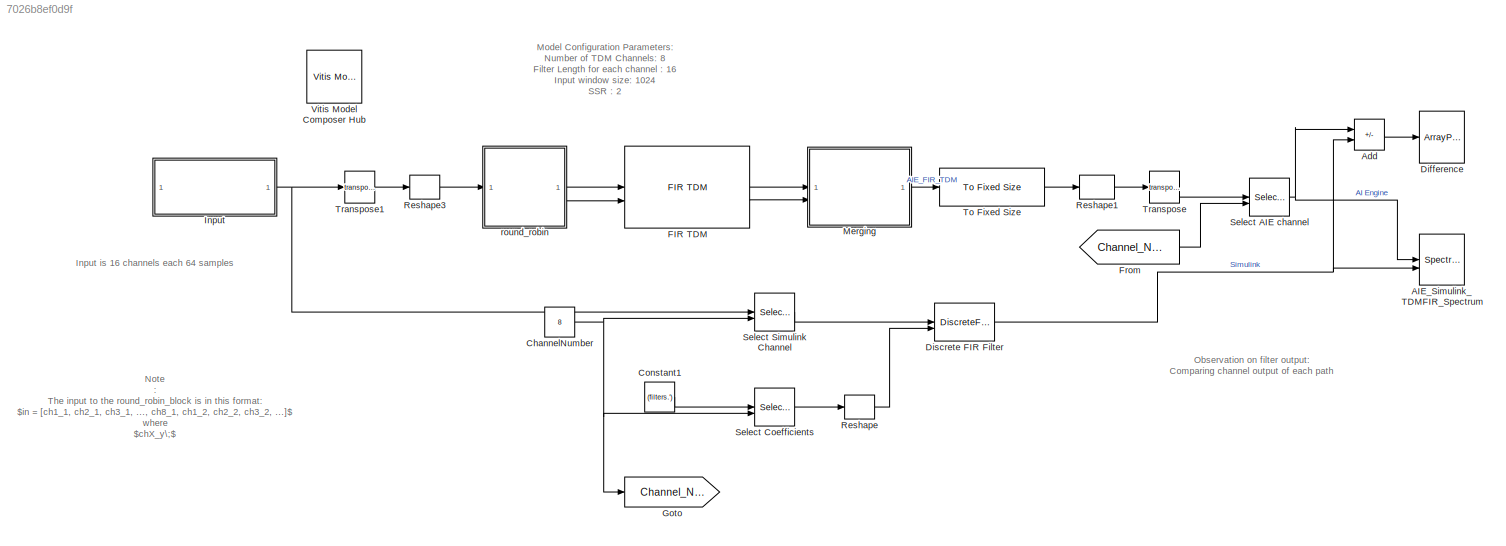
MODEL slx_7026b8ef0d9f
KIND model
CONFIG AbsTol = auto
CONFIG EnableMultiTasking = off
CONFIG FixedStep = auto
CONFIG InitFcn = NumOf_TDM_Channels = 8;\nSamplesPerChannel = 128;\nFilterLength = 16;\nf = dsp.Channelizer(NumOf_TDM_Channels,1,Specification="coefficients");\nblowpass = firpm(FilterLength-1,[0 .2 .4 1],[1 1 0 0]);\nN = length(blowpass)-1;\nFc = 0.4;\nj = complex(0,1);\nbbandpass = blowpass.*exp(j*Fc*pi*(0:N));\nf.LowpassCoefficients = bbandpass;\nf.freqz\nfilters = f.getFilters;\nfilters = round(filters, 14, TieBreaker="fr...<+9ch>
CONFIG MaxStep = auto
CONFIG MinStep = auto
CONFIG RelTol = 1e-3
CONFIG SampleTimeConstraint = Unconstrained
CONFIG SolverName = VariableStepAuto
CONFIG StartTime = 0.0
CONFIG StopTime = 5
BLOCK [SpectrumAnalyzer] AIE_Simulink_TDMFIR_Spectrum
  GraphicalSettings = {"GraphicalSettings":{"Style":{"BackgroundColor":[0.12941176470588237,0.12941176470588237,0.12941176470588237],"AxesColor":[0.070588235294117646,0.070588235294117646,0.070588235294117646],"LabelsColor":[0.85098039215686272,0.85098039215686272,0.85098039215686272],"PreserveColors":false,"Visible":[true,true],"LineStyle":["-","-"],"LineColor":[[1,0.90980392156862744,0.39215686274509803],[0.149019607...<+1033ch>
  MeasurementChannel = 2
  NumInputPorts = 2
  ScopeFrameLocation = window
  SelectedToolstripTab = spectrumAnalyzerToolstrip.channelMeasurementsTab
  ShowLegend = on
  Span = 12499.999999999998
  StartFrequency = -6249.999999999999
  StopFrequency = 6249.999999999999
  Visible = on
  WasSavedAsWebScope = on
  WindowPosition = [247.000000,29.000000,936.000000,716.000000,]
  YLimits = [-89.98012941,-27.59367976]
BLOCK [Sum] Add
  IconShape = rectangular
  Inputs = +-
BLOCK [Constant] ChannelNumber
  OutDataTypeStr = uint16
  SampleTime = -1
  Value = 8
BLOCK [Constant] Constant1
  OutDataTypeStr = single
  SampleTime = -1
  Value = (filters.')
BLOCK [ArrayPlot] Difference
  AxesScaling = Manual
  GraphicalSettings = {"Style":{"BackgroundColor":[0.12941176470588237,0.12941176470588237,0.12941176470588237],"AxesColor":[0.070588235294117646,0.070588235294117646,0.070588235294117646],"LabelsColor":[0.85098039215686272,0.85098039215686272,0.85098039215686272],"PreserveColors":false,"Visible":[true,true],"LineStyle":["-","-"],"LineColor":[[1,0.90980392156862744,0.39215686274509803],[0.14901960784313725,0.5490196078...<+641ch>
  PlotType = Line
  ScopeFrameLocation = window
  ShowLegend = on
  Visible = on
  WasSavedAsWebScope = on
  WindowPosition = [387.000000,26.000000,800.000000,500.000000,]
  XDataMode = Custom
  XOffset = [-0.5 0.5]
  YLimits = [-0.5 0.5]
BLOCK [DiscreteFir] Discrete FIR Filter
  CoefSource = Input port
  Coefficients = filters(1,:)
  InputPortMap = u0,u1
  InputProcessing = Columns as channels (frame based)
  OutputPortMap = o0
  RndMeth = Round
BLOCK [Reference] FIR TDM  REF=aieDSP/FIR TDM
  SourceBlock = aieDSP/FIR TDM
  SourceType = FIR TDM
BLOCK [From] From
  GotoTag = Channel_Number
  TagVisibility = global
BLOCK [Goto] Goto
  GotoTag = Channel_Number
  TagVisibility = global
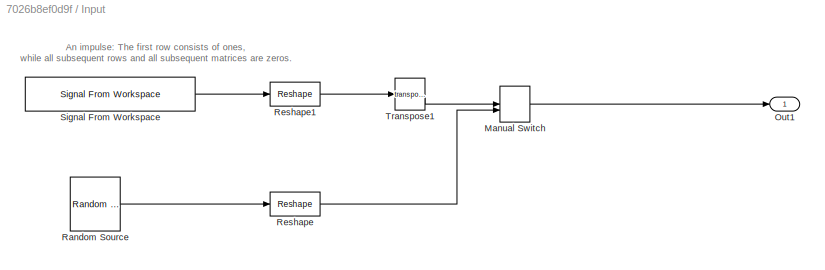
BLOCK [SubSystem] Input
BLOCK [ManualSwitch] Input/Manual Switch
  CurrentSetting = 0
BLOCK [Outport] Input/Out1
BLOCK [Reference] Input/Random Source  REF=dspobslib/Random
Source
  SourceBlock = dspobslib/Random\nSource
  SourceType = Random Source Obsolete
BLOCK [Reshape] Input/Reshape
  OutputDimensionality = Customize
  OutputDimensions = [SamplesPerChannel,NumOf_TDM_Channels]
BLOCK [Reshape] Input/Reshape1
  OutputDimensionality = Customize
  OutputDimensions = [NumOf_TDM_Channels,SamplesPerChannel]
BLOCK [Reference] Input/Signal From Workspace  REF=dspsrcs4/Signal From
Workspace
  SourceBlock = dspsrcs4/Signal From\nWorkspace
  SourceType = Signal From Workspace
BLOCK [Math] Input/Transpose1
  Operator = transpose
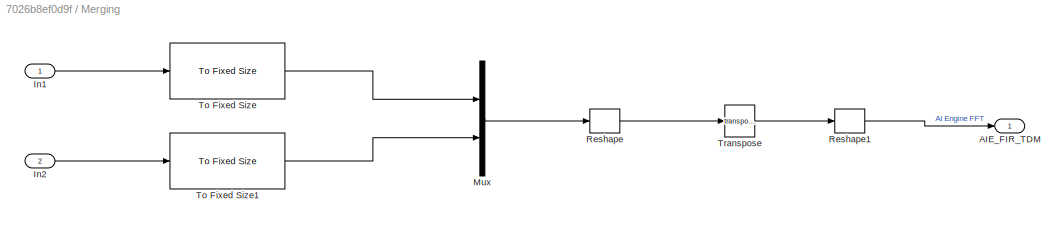
BLOCK [SubSystem] Merging
BLOCK [Outport] Merging/AIE_FIR_TDM
BLOCK [Inport] Merging/In1
BLOCK [Inport] Merging/In2
  Port = 2
BLOCK [Mux] Merging/Mux
  DisplayOption = bar
  Inputs = 2
BLOCK [Reshape] Merging/Reshape
  OutputDimensionality = Customize
  OutputDimensions = [512, 2]
BLOCK [Reshape] Merging/Reshape1
  OutputDimensions = [1, 10]
BLOCK [Reference] Merging/To Fixed Size  REF=aieUtilities/To Fixed Size
  SourceBlock = aieUtilities/To Fixed Size
  SourceType = To Fixed Size
BLOCK [Reference] Merging/To Fixed Size1  REF=aieUtilities/To Fixed Size
  SourceBlock = aieUtilities/To Fixed Size
  SourceType = To Fixed Size
BLOCK [Math] Merging/Transpose
  Operator = transpose
BLOCK [Reshape] Reshape
  OutputDimensionality = Row vector (2-D)
BLOCK [Reshape] Reshape1
  OutputDimensionality = Customize
  OutputDimensions = [NumOf_TDM_Channels,SamplesPerChannel]
BLOCK [Reshape] Reshape3
BLOCK [Selector] Select AIE channel
  IndexOptions = Select all,Index vector (port)
  Indices = 3,[16]
  InputPortWidth = 3
  NumberOfDimensions = 2
  OutputSizes = 1,1
BLOCK [Selector] Select Coefficients
  IndexOptions = Select all,Index vector (port)
  Indices = 3,[16]
  InputPortWidth = 3
  NumberOfDimensions = 2
  OutputSizes = 1,1
BLOCK [Selector] Select Simulink Channel
  IndexOptions = Select all,Index vector (port)
  Indices = 3,[16]
  InputPortWidth = 3
  NumberOfDimensions = 2
  OutputSizes = 1,1
BLOCK [Reference] To Fixed Size  REF=aieUtilities/To Fixed Size
  SourceBlock = aieUtilities/To Fixed Size
  SourceType = To Fixed Size
BLOCK [Math] Transpose
  Operator = transpose
BLOCK [Math] Transpose1
  Operator = transpose
BLOCK [Reference] Vitis Model Composer Hub  REF=vmcUtilities/Vitis Model Composer Hub
  SourceBlock = vmcUtilities/Vitis Model Composer Hub
  SourceType = VMC Hub
  Tag = genX
  UserDataPersistent = on
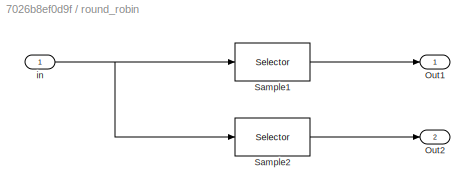
BLOCK [SubSystem] round_robin
BLOCK [Outport] round_robin/Out1
BLOCK [Outport] round_robin/Out2
  Port = 2
BLOCK [Selector] round_robin/Sample1
  IndexOptions = Index vector (dialog)
  Indices = 1:2:1024
  InputPortWidth = 1024
  OutputSizes = 1
BLOCK [Selector] round_robin/Sample2
  IndexOptions = Index vector (dialog)
  Indices = 2:2:1024
  InputPortWidth = 1024
  OutputSizes = 1
BLOCK [Inport] round_robin/in
ANNOTATION (root): Input is 16 channels each 64 samples
ANNOTATION (root): Observation on filter output: Comparing channel output of each path
ANNOTATION (root): Model Configuration Parameters: Number of TDM Channels: 8 Filter Length for each channel : 16 Input window size: 1024 SSR : 2
ANNOTATION (root): Note : The input to the round_robin_block is in this format: $in = [ch1_1, ch2_1, ch3_1, ..., ch8_1, ch1_2, ch2_2, ch3_2, ...]$ where $chX_y\;$ is the yth sample in channel X. Filer Coefficients: Filter coefficients are specified as a LxN matrix, where L is the filter length and N is the number of TDM channels. Number of TDM Channels and Filter length is defined in Model Properties.
ANNOTATION Input: An impulse: The first row consists of ones, while all subsequent rows and all subsequent matrices are zeros.
LINE Add:1 -> Difference:1
NET ChannelNumber:1 -> Goto:1, Select Coefficients:2, Select Simulink Channel:2
LINE Constant1:1 -> Select Coefficients:1
NET Discrete FIR Filter:1 -> AIE_Simulink_TDMFIR_Spectrum:2, Add:2
LINE FIR TDM:1 -> Merging:1
LINE FIR TDM:2 -> Merging:2
LINE From:1 -> Select AIE channel:2
LINE Input/Manual Switch:1 -> Input/Out1:1
LINE Input/Random Source:1 -> Input/Reshape:1
LINE Input/Reshape1:1 -> Input/Transpose1:1
LINE Input/Reshape:1 -> Input/Manual Switch:2
LINE Input/Signal From Workspace:1 -> Input/Reshape1:1
LINE Input/Transpose1:1 -> Input/Manual Switch:1
NET Input:1 -> Select Simulink Channel:1, Transpose1:1
LINE Merging/In1:1 -> Merging/To Fixed Size:1
LINE Merging/In2:1 -> Merging/To Fixed Size1:1
LINE Merging/Mux:1 -> Merging/Reshape:1
LINE Merging/Reshape1:1 -> Merging/AIE_FIR_TDM:1
LINE Merging/Reshape:1 -> Merging/Transpose:1
LINE Merging/To Fixed Size1:1 -> Merging/Mux:2
LINE Merging/To Fixed Size:1 -> Merging/Mux:1
LINE Merging/Transpose:1 -> Merging/Reshape1:1
LINE Merging:1 -> To Fixed Size:1
LINE Reshape1:1 -> Transpose:1
LINE Reshape3:1 -> round_robin:1
LINE Reshape:1 -> Discrete FIR Filter:2
NET Select AIE channel:1 -> AIE_Simulink_TDMFIR_Spectrum:1, Add:1
LINE Select Coefficients:1 -> Reshape:1
LINE Select Simulink Channel:1 -> Discrete FIR Filter:1
LINE To Fixed Size:1 -> Reshape1:1
LINE Transpose1:1 -> Reshape3:1
LINE Transpose:1 -> Select AIE channel:1
LINE round_robin/Sample1:1 -> round_robin/Out1:1
LINE round_robin/Sample2:1 -> round_robin/Out2:1
NET round_robin/in:1 -> round_robin/Sample1:1, round_robin/Sample2:1
LINE round_robin:1 -> FIR TDM:1
LINE round_robin:2 -> FIR TDM:2
note: NET lines group one-source signal fan-out (src -> all destinations, sorted); 1:1 wires keep LINE
